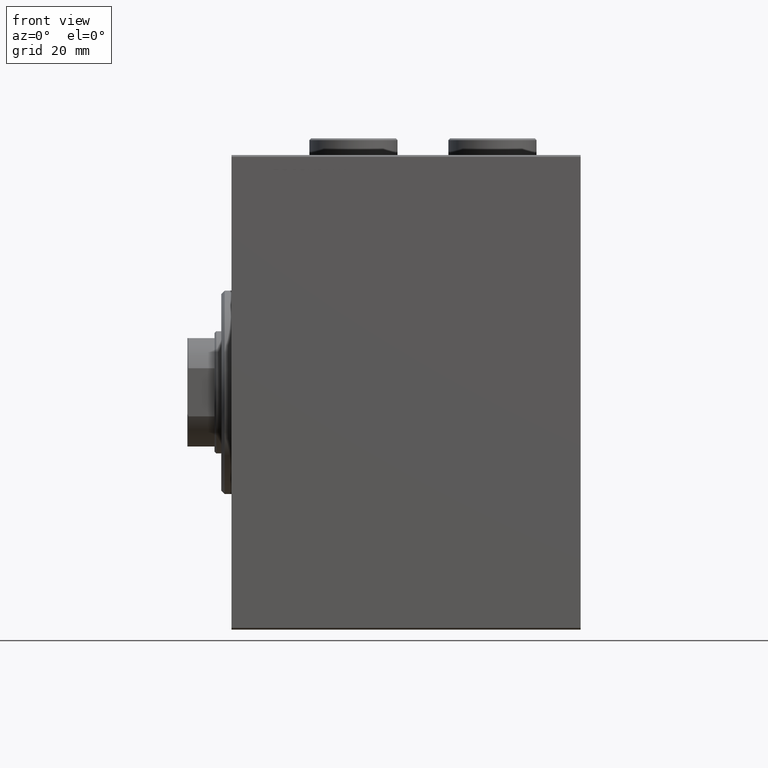
[diagram: clean part render]
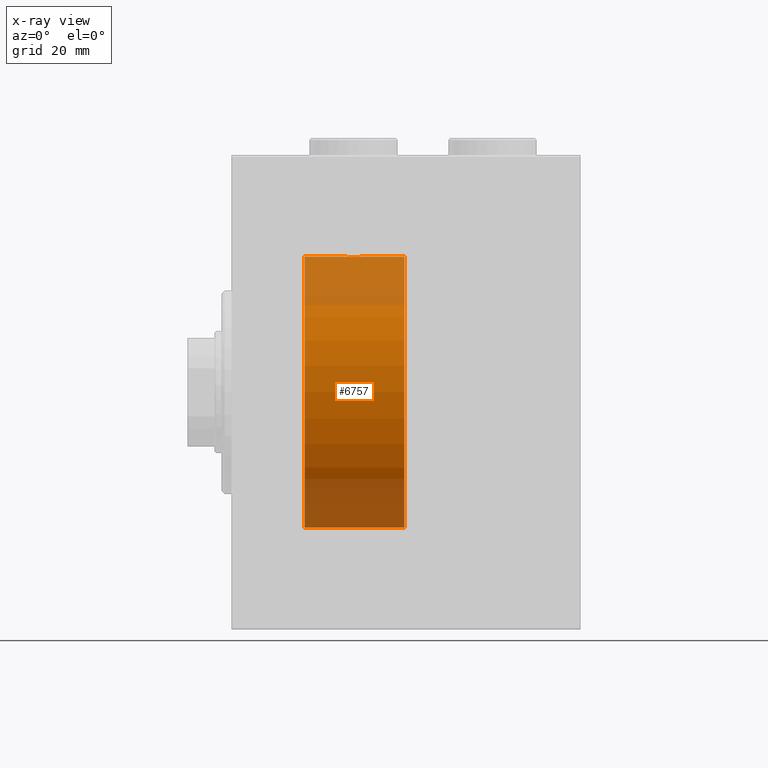
[diagram: x-ray — body ghosted, one internal face saturated and labeled with its STEP entity id]
A machine part, front view, then the same camera in x-ray: the body is ghosted and one INTERNAL B-rep face — a face not visible from any outside direction — is saturated and labeled: STEP entity #6757.
In plain terms, the highlighted cylindrical surface (partial cylindrical patch) has radius 40 mm, axis along (-1, -0, -0).
Its self-contained STEP definition (entity closure, byte-faithful):
#153 = CARTESIAN_POINT ( 'NONE',  ( 33.07973825008353685, -0.7903958539027382546, -39.99381900068937767 ) ) ;
#164 = EDGE_CURVE ( 'NONE', #2435, #39814, #27151, .T. ) ;
#1048 = CARTESIAN_POINT ( 'NONE',  ( 51.00000000000000711, 4.898587196589413026E-15, -40.00000000000000000 ) ) ;
#2270 = VERTEX_POINT ( 'NONE', #11403 ) ;
#2290 = CARTESIAN_POINT ( 'NONE',  ( 33.01898122889073761, -0.3904143323715978386, 39.99856256910221219 ) ) ;
#2353 = CARTESIAN_POINT ( 'NONE',  ( 51.00000000000000711, 4.898587196589413026E-15, -40.00000000000000000 ) ) ;
#2435 = VERTEX_POINT ( 'NONE', #41504 ) ;
#3169 = CARTESIAN_POINT ( 'NONE',  ( 37.32853644746295885, -2.696981015661930936, 39.90904630908467254 ) ) ;
#3611 = CARTESIAN_POINT ( 'NONE',  ( 38.98101877110926239, -0.3904143323715931757, -39.99856256910221219 ) ) ;
#3615 = CARTESIAN_POINT ( 'NONE',  ( 38.38251680911463382, -1.833695109615725904, 39.95828327492363741 ) ) ;
#5472 = DIRECTION ( 'NONE',  ( -1.000000000000000000, -0.000000000000000000, -0.000000000000000000 ) ) ;
#5690 = DIRECTION ( 'NONE',  ( 0.000000000000000000, 0.000000000000000000, 1.000000000000000000 ) ) ;
#6376 = CARTESIAN_POINT ( 'NONE',  ( 38.90425173651351543, -0.7773146824710984726, -39.99291453282344122 ) ) ;
#6668 = VERTEX_POINT ( 'NONE', #25168 ) ;
#6757 = ADVANCED_FACE ( 'NONE', ( #19414 ), #30435, .F. ) ;
#7049 = CARTESIAN_POINT ( 'NONE',  ( 51.00000000000000711, 4.898587196589413026E-15, -40.00000000000000000 ) ) ;
#7100 = CARTESIAN_POINT ( 'NONE',  ( 51.00000000000000711, 0.000000000000000000, 40.00000000000000000 ) ) ;
#7283 = CARTESIAN_POINT ( 'NONE',  ( 34.01863720485770415, -2.261082456166700005, -39.93628274425758917 ) ) ;
#7287 = CARTESIAN_POINT ( 'NONE',  ( 38.92026174991647736, -0.7903958539027412522, 39.99381900068937057 ) ) ;
#7515 = CARTESIAN_POINT ( 'NONE',  ( 37.82690184632409824, -2.387636253591825408, 39.92882473497732576 ) ) ;
#9320 = CARTESIAN_POINT ( 'NONE',  ( 21.60000000000000142, 4.898587196589413026E-15, -40.00000000000000000 ) ) ;
#10063 = CARTESIAN_POINT ( 'NONE',  ( 33.39811271871507614, -1.506322235190781456, -39.97196309111974699 ) ) ;
#10069 = CARTESIAN_POINT ( 'NONE',  ( 38.60188728128492386, -1.506322235190791226, 39.97196309111975410 ) ) ;
#10315 = EDGE_CURVE ( 'NONE', #17571, #2435, #19708, .T. ) ;
#10735 = CARTESIAN_POINT ( 'NONE',  ( 32.99999999999998579, -0.3964922677423637909, -39.99999999999998579 ) ) ;
#11403 = CARTESIAN_POINT ( 'NONE',  ( 32.99999999999999289, 4.605585004310627937E-15, -40.00000000000000000 ) ) ;
#12727 = ORIENTED_EDGE ( 'NONE', *, *, #164, .F. ) ;
#12752 = DIRECTION ( 'NONE',  ( 0.000000000000000000, 0.000000000000000000, 1.000000000000000000 ) ) ;
#12781 = ORIENTED_EDGE ( 'NONE', *, *, #20624, .T. ) ;
#12811 = EDGE_CURVE ( 'NONE', #17571, #43357, #19439, .T. ) ;
#13082 = CARTESIAN_POINT ( 'NONE',  ( 34.01538552187719233, -2.258217541132904849, 39.93644519243652979 ) ) ;
#13497 = VERTEX_POINT ( 'NONE', #9320 ) ;
#13528 = CARTESIAN_POINT ( 'NONE',  ( 36.39522483453576029, -2.980272303779541332, -39.88883864243169342 ) ) ;
#13533 = CARTESIAN_POINT ( 'NONE',  ( 37.50088468404034359, -2.604941918888319385, 39.91523680494982784 ) ) ;
#13975 = CARTESIAN_POINT ( 'NONE',  ( 33.30462992291564461, -1.331594428131640528, -39.97823692017208685 ) ) ;
#14544 = B_SPLINE_CURVE_WITH_KNOTS ( 'NONE', 3,
 ( #23200, #33798, #2290, #23428, #19983, #16319, #27327, #34022, #30546, #13082, #16752, #27106, #23652, #30771, #37910, #24095, #39031, #31216, #21089, #42257, #17199, #3169, #13533, #7515, #42478, #35126, #3615, #10069, #17644, #7287, #41582, #35361 ),
 .UNSPECIFIED., .F., .F.,
 ( 4, 2, 2, 2, 2, 2, 2, 2, 2, 2, 2, 2, 2, 2, 2, 4 ),
 ( 0.009382660366305094896, 0.009968941372944132434, 0.01055522237958316824, 0.01114150338622220404, 0.01172778439286124158, 0.01231406539950027912, 0.01290034640613931492, 0.01348662741277835073, 0.01407290841941738826, 0.01465918942605642580, 0.01524547043269546161, 0.01583175143933449741, 0.01641803244597353495, 0.01700431345261257249, 0.01759059445925161003, 0.01876315647252968163 ),
 .UNSPECIFIED. ) ;
#15924 = LINE ( 'NONE', #2353, #41088 ) ;
#16058 = DIRECTION ( 'NONE',  ( -1.000000000000000000, 0.000000000000000000, 0.000000000000000000 ) ) ;
#16083 = AXIS2_PLACEMENT_3D ( 'NONE', #40355, #44263, #12752 ) ;
#16319 = CARTESIAN_POINT ( 'NONE',  ( 33.30278659419118981, -1.327859336864149364, 39.97836169682016561 ) ) ;
#16752 = CARTESIAN_POINT ( 'NONE',  ( 34.16955177177597847, -2.384933850258112553, 39.92898715513240404 ) ) ;
#16974 = CARTESIAN_POINT ( 'NONE',  ( 39.00000000000000000, 4.898587181754971267E-15, -40.00000000000000000 ) ) ;
#17119 = ORIENTED_EDGE ( 'NONE', *, *, #42362, .T. ) ;
#17194 = CARTESIAN_POINT ( 'NONE',  ( 36.77869523415743913, -2.903766417398228938, -39.89448096967571900 ) ) ;
#17199 = CARTESIAN_POINT ( 'NONE',  ( 36.96489325853514885, -2.847401743820463516, 39.89859630624608400 ) ) ;
#17203 = DIRECTION ( 'NONE',  ( -1.000000000000000000, 0.000000000000000000, 0.000000000000000000 ) ) ;
#17410 = CARTESIAN_POINT ( 'NONE',  ( 38.38507600915353635, -1.830402106103512505, -39.95843610133493229 ) ) ;
#17556 = EDGE_CURVE ( 'NONE', #43357, #2270, #38289, .T. ) ;
#17571 = VERTEX_POINT ( 'NONE', #7049 ) ;
#17644 = CARTESIAN_POINT ( 'NONE',  ( 38.69537007708435539, -1.331594428131646302, 39.97823692017208685 ) ) ;
#17646 = DIRECTION ( 'NONE',  ( 0.000000000000000000, 0.000000000000000000, 1.000000000000000000 ) ) ;
#17664 = EDGE_LOOP ( 'NONE', ( #37838, #18974, #43392, #12781, #28402, #30442, #17119, #12727 ) ) ;
#17856 = CARTESIAN_POINT ( 'NONE',  ( 34.67146355253704826, -2.696981015661917613, -39.90904630908468675 ) ) ;
#18313 = VECTOR ( 'NONE', #18748, 1000.000000000000000 ) ;
#18748 = DIRECTION ( 'NONE',  ( -1.000000000000000000, -0.000000000000000000, -0.000000000000000000 ) ) ;
#18974 = ORIENTED_EDGE ( 'NONE', *, *, #12811, .T. ) ;
#19414 = FACE_OUTER_BOUND ( 'NONE', #17664, .T. ) ;
#19439 = LINE ( 'NONE', #1048, #18313 ) ;
#19708 = CIRCLE ( 'NONE', #24850, 40.00000000000000000 ) ;
#19983 = CARTESIAN_POINT ( 'NONE',  ( 33.15334726986859692, -0.9668189122103379995, 39.98872185468384544 ) ) ;
#20270 = VECTOR ( 'NONE', #31257, 1000.000000000000000 ) ;
#20412 = CARTESIAN_POINT ( 'NONE',  ( 36.96938341894465907, -2.845855236045336856, -39.89870693240651178 ) ) ;
#20624 = EDGE_CURVE ( 'NONE', #2270, #13497, #15924, .T. ) ;
#20863 = CARTESIAN_POINT ( 'NONE',  ( 34.17309815367588754, -2.387636253591812974, -39.92882473497732576 ) ) ;
#21089 = CARTESIAN_POINT ( 'NONE',  ( 36.39109692509332916, -2.980812880639903906, 39.88879797994688658 ) ) ;
#23200 = CARTESIAN_POINT ( 'NONE',  ( 32.99999999999999289, -1.483452932268112700E-23, 40.00000000000000000 ) ) ;
#23428 = CARTESIAN_POINT ( 'NONE',  ( 33.09574826348647036, -0.7773146824711030245, 39.99291453282344833 ) ) ;
#23652 = CARTESIAN_POINT ( 'NONE',  ( 34.66775731134134730, -2.695129988695740053, 39.90917164320281785 ) ) ;
#23872 = CARTESIAN_POINT ( 'NONE',  ( 33.74170329679496660, -1.984537326394300250, -39.95097977400577349 ) ) ;
#24091 = CARTESIAN_POINT ( 'NONE',  ( 38.60433599912083480, -1.502129635934000396, -39.97212271185185273 ) ) ;
#24095 = CARTESIAN_POINT ( 'NONE',  ( 35.60477516546423260, -2.980272303779554210, 39.88883864243167920 ) ) ;
#24323 = CARTESIAN_POINT ( 'NONE',  ( 38.84665273013138176, -0.9668189122103333366, -39.98872185468385254 ) ) ;
#24546 = CARTESIAN_POINT ( 'NONE',  ( 38.26097616994740491, -1.981471132463162643, -39.95113231465139592 ) ) ;
#24552 = CARTESIAN_POINT ( 'NONE',  ( 21.60000000000000142, 0.000000000000000000, 0.000000000000000000 ) ) ;
#24762 = CARTESIAN_POINT ( 'NONE',  ( 37.83044822822401443, -2.384933850258100119, -39.92898715513241115 ) ) ;
#24850 = AXIS2_PLACEMENT_3D ( 'NONE', #44559, #16058, #5690 ) ;
#25106 = EDGE_CURVE ( 'NONE', #6668, #33837, #26624, .T. ) ;
#25168 = CARTESIAN_POINT ( 'NONE',  ( 32.99999999999999289, -1.483452932268112700E-23, 40.00000000000000000 ) ) ;
#26624 = LINE ( 'NONE', #44342, #44006 ) ;
#27106 = CARTESIAN_POINT ( 'NONE',  ( 34.49556917086534469, -2.602909538701760450, 39.91537030566259148 ) ) ;
#27151 = LINE ( 'NONE', #7100, #20270 ) ;
#27327 = CARTESIAN_POINT ( 'NONE',  ( 33.39566400087915099, -1.502129635934003948, 39.97212271185185983 ) ) ;
#27538 = CARTESIAN_POINT ( 'NONE',  ( 36.20041286019198168, -2.999840380514735116, -39.88735335562824957 ) ) ;
#27983 = CARTESIAN_POINT ( 'NONE',  ( 38.99999999999999289, -0.1957844162750510819, -40.00000000000000711 ) ) ;
#28402 = ORIENTED_EDGE ( 'NONE', *, *, #33745, .T. ) ;
#30333 = CARTESIAN_POINT ( 'NONE',  ( 39.00000000000000000, 4.898587181754971267E-15, -40.00000000000000000 ) ) ;
#30435 = CYLINDRICAL_SURFACE ( 'NONE', #16083, 40.00000000000000000 ) ;
#30442 = ORIENTED_EDGE ( 'NONE', *, *, #25106, .F. ) ;
#30546 = CARTESIAN_POINT ( 'NONE',  ( 33.73902383005257377, -1.981471132463168638, 39.95113231465138881 ) ) ;
#30771 = CARTESIAN_POINT ( 'NONE',  ( 35.03061658105534093, -2.845855236045346626, 39.89870693240651178 ) ) ;
#30986 = CARTESIAN_POINT ( 'NONE',  ( 35.03510674146484405, -2.847401743820449305, -39.89859630624607689 ) ) ;
#31009 = AXIS2_PLACEMENT_3D ( 'NONE', #24552, #17203, #17646 ) ;
#31216 = CARTESIAN_POINT ( 'NONE',  ( 36.19560531073085485, -3.000157693440645090, 39.88732948994960026 ) ) ;
#31257 = DIRECTION ( 'NONE',  ( -1.000000000000000000, -0.000000000000000000, -0.000000000000000000 ) ) ;
#31429 = CARTESIAN_POINT ( 'NONE',  ( 37.33224268865864559, -2.695129988695729839, -39.90917164320280364 ) ) ;
#32638 = CARTESIAN_POINT ( 'NONE',  ( 39.00000000000000000, -4.750840494920854782E-16, 40.00000000000000000 ) ) ;
#33745 = EDGE_CURVE ( 'NONE', #13497, #33837, #44981, .T. ) ;
#33798 = CARTESIAN_POINT ( 'NONE',  ( 32.99999999999998579, -0.1957844162750546346, 39.99999999999999289 ) ) ;
#33837 = VERTEX_POINT ( 'NONE', #36270 ) ;
#34022 = CARTESIAN_POINT ( 'NONE',  ( 33.61492399084645655, -1.830402106103517834, 39.95843610133493229 ) ) ;
#34458 = CARTESIAN_POINT ( 'NONE',  ( 35.22544321173658943, -2.904869018727217700, -39.89440043036668726 ) ) ;
#35126 = CARTESIAN_POINT ( 'NONE',  ( 38.25829670320502629, -1.984537326394312018, 39.95097977400578060 ) ) ;
#35361 = CARTESIAN_POINT ( 'NONE',  ( 39.00000000000000000, -4.750840494920854782E-16, 40.00000000000000000 ) ) ;
#36270 = CARTESIAN_POINT ( 'NONE',  ( 21.60000000000000142, 0.000000000000000000, 40.00000000000000000 ) ) ;
#37838 = ORIENTED_EDGE ( 'NONE', *, *, #10315, .F. ) ;
#37910 = CARTESIAN_POINT ( 'NONE',  ( 35.22130476584258219, -2.903766417398241373, 39.89448096967571189 ) ) ;
#38289 = B_SPLINE_CURVE_WITH_KNOTS ( 'NONE', 3,
 ( #16974, #27983, #3611, #6376, #24323, #45257, #24091, #17410, #24546, #38355, #24762, #42253, #31429, #20412, #17194, #13528, #27538, #38575, #45037, #34458, #30986, #17856, #41809, #20863, #7283, #23872, #41578, #10063, #13975, #153, #10735, #42032 ),
 .UNSPECIFIED., .F., .F.,
 ( 4, 2, 2, 2, 2, 2, 2, 2, 2, 2, 2, 2, 2, 2, 2, 4 ),
 ( 0.009382660366305110508, 0.009968941372944146312, 0.01055522237958318212, 0.01114150338622221792, 0.01172778439286125372, 0.01231406539950028953, 0.01290034640613932533, 0.01348662741277836113, 0.01407290841941739694, 0.01465918942605643274, 0.01524547043269546855, 0.01583175143933450435, 0.01641803244597354189, 0.01700431345261257596, 0.01759059445925161003, 0.01876315647252968163 ),
 .UNSPECIFIED. ) ;
#38355 = CARTESIAN_POINT ( 'NONE',  ( 37.98461447812278635, -2.258217541132897743, -39.93644519243654400 ) ) ;
#38575 = CARTESIAN_POINT ( 'NONE',  ( 35.80439468926913804, -3.000157693440631324, -39.88732948994960026 ) ) ;
#39031 = CARTESIAN_POINT ( 'NONE',  ( 35.79958713980801832, -2.999840380514748883, 39.88735335562824957 ) ) ;
#39814 = VERTEX_POINT ( 'NONE', #32638 ) ;
#40306 = DIRECTION ( 'NONE',  ( -1.000000000000000000, -0.000000000000000000, -0.000000000000000000 ) ) ;
#40355 = CARTESIAN_POINT ( 'NONE',  ( 51.00000000000000711, 0.000000000000000000, 0.000000000000000000 ) ) ;
#41088 = VECTOR ( 'NONE', #40306, 1000.000000000000000 ) ;
#41504 = CARTESIAN_POINT ( 'NONE',  ( 51.00000000000000711, 0.000000000000000000, 40.00000000000000000 ) ) ;
#41578 = CARTESIAN_POINT ( 'NONE',  ( 33.61748319088535908, -1.833695109615714802, -39.95828327492363741 ) ) ;
#41582 = CARTESIAN_POINT ( 'NONE',  ( 39.00000000000000000, -0.3964922677423686759, 40.00000000000000000 ) ) ;
#41809 = CARTESIAN_POINT ( 'NONE',  ( 34.49911531595966352, -2.604941918888306507, -39.91523680494982784 ) ) ;
#42032 = CARTESIAN_POINT ( 'NONE',  ( 32.99999999999999289, 4.605585004310627937E-15, -40.00000000000000000 ) ) ;
#42253 = CARTESIAN_POINT ( 'NONE',  ( 37.50443082913466242, -2.602909538701748016, -39.91537030566259148 ) ) ;
#42257 = CARTESIAN_POINT ( 'NONE',  ( 36.77455678826340346, -2.904869018727227470, 39.89440043036668726 ) ) ;
#42362 = EDGE_CURVE ( 'NONE', #6668, #39814, #14544, .T. ) ;
#42478 = CARTESIAN_POINT ( 'NONE',  ( 37.98136279514228875, -2.261082456166712440, 39.93628274425758207 ) ) ;
#43357 = VERTEX_POINT ( 'NONE', #30333 ) ;
#43392 = ORIENTED_EDGE ( 'NONE', *, *, #17556, .T. ) ;
#44006 = VECTOR ( 'NONE', #5472, 1000.000000000000000 ) ;
#44263 = DIRECTION ( 'NONE',  ( -1.000000000000000000, -0.000000000000000000, -0.000000000000000000 ) ) ;
#44342 = CARTESIAN_POINT ( 'NONE',  ( 51.00000000000000711, 0.000000000000000000, 40.00000000000000000 ) ) ;
#44559 = CARTESIAN_POINT ( 'NONE',  ( 51.00000000000000711, 0.000000000000000000, 0.000000000000000000 ) ) ;
#44981 = CIRCLE ( 'NONE', #31009, 40.00000000000000000 ) ;
#45037 = CARTESIAN_POINT ( 'NONE',  ( 35.60890307490667794, -2.980812880639892359, -39.88879797994688658 ) ) ;
#45257 = CARTESIAN_POINT ( 'NONE',  ( 38.69721340580881730, -1.327859336864144035, -39.97836169682019403 ) ) ;